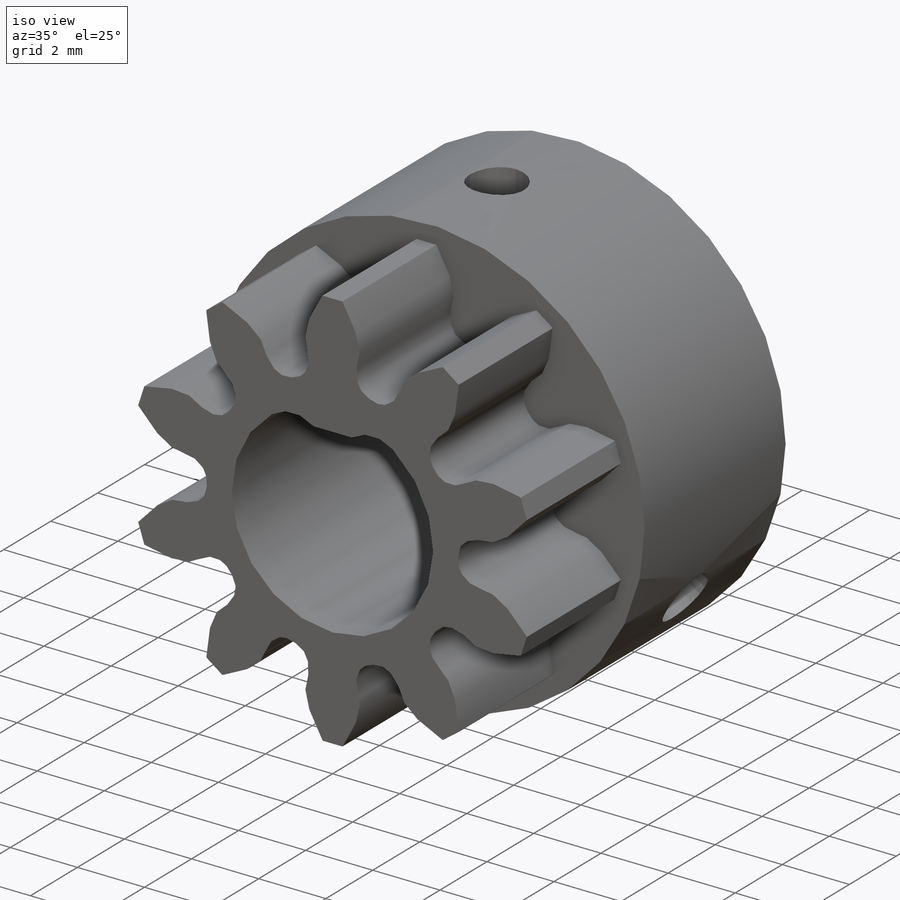
[diagram: iso view]
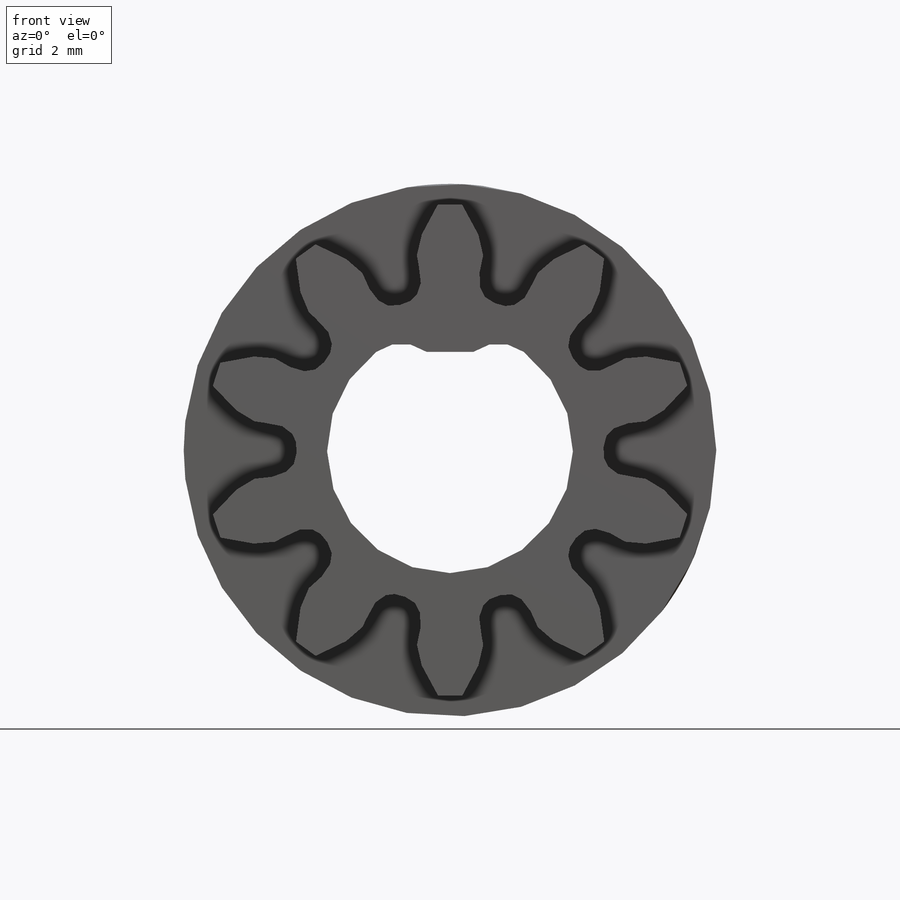
[diagram: front view]
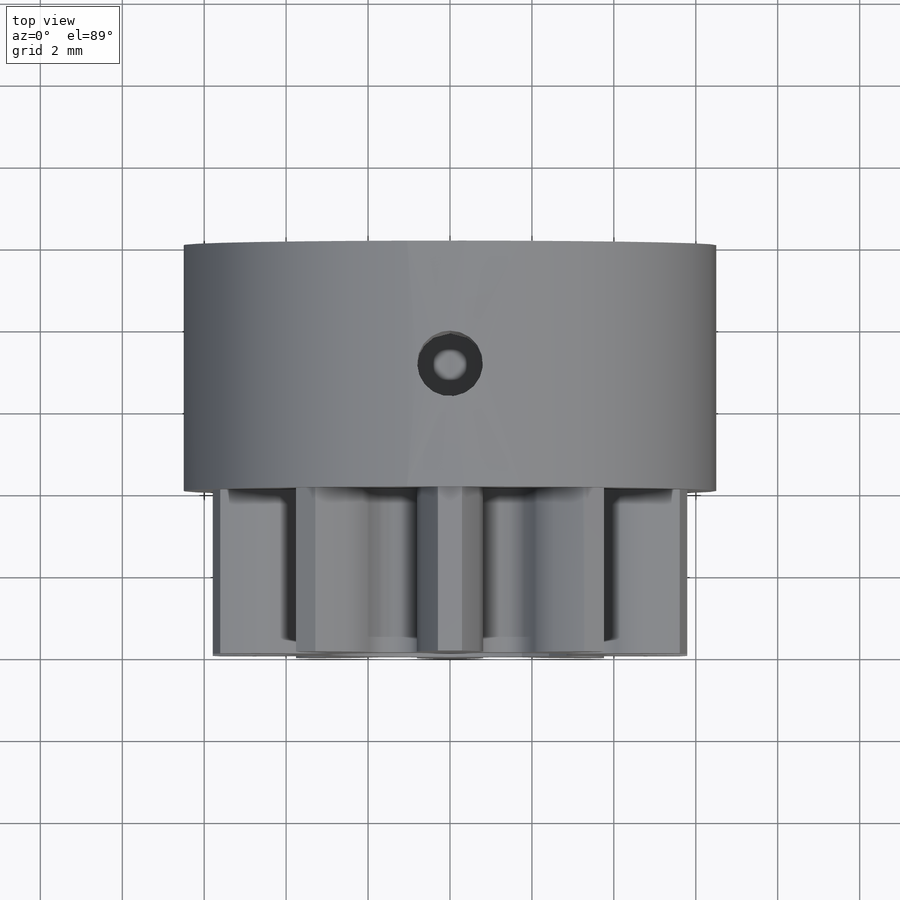
[diagram: top view]
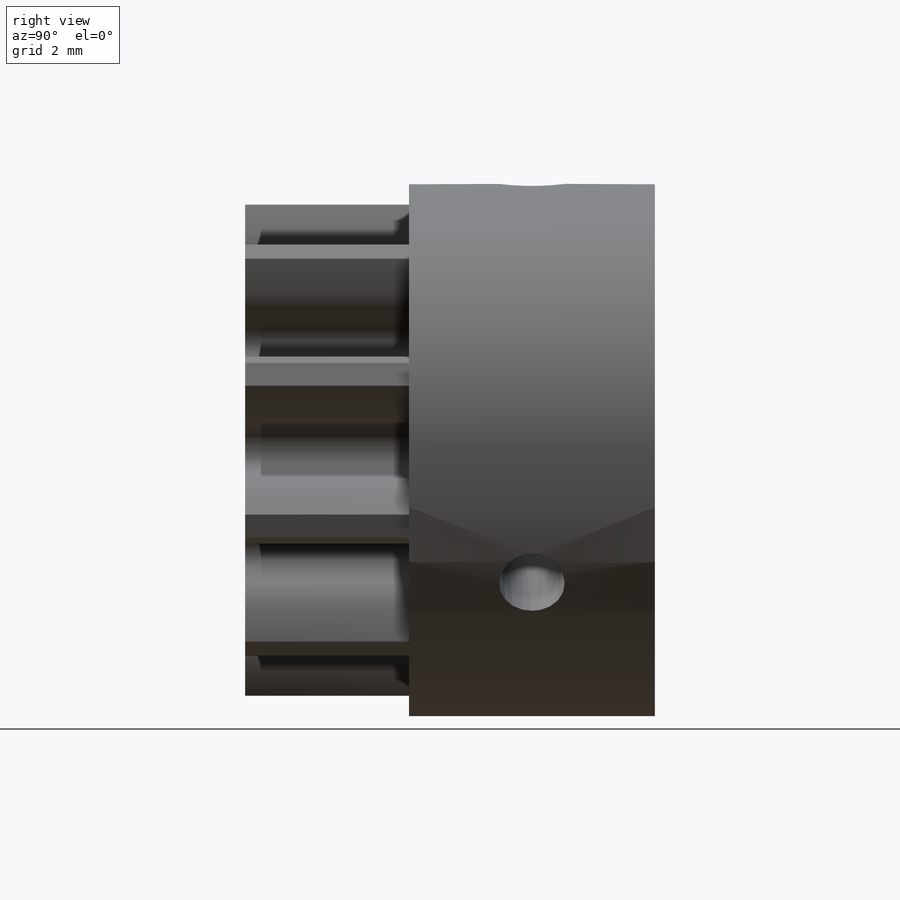
[diagram: right view]
SOLIDWORKS PART (.sldprt)
format: sldprt  version: not decoded by parser v0  size: 376,320 bytes
history: native  units: mm
features: sketch x8, pattern_circular x2, extrude x2, material x1, revolve x1, cut_extrude x1, cut_revolve x1, plane x1, hole x1 (+12 scaffold rows collapsed)
feature tree (30):
  scaffold x12  (default folders/planes/origin — collapsed)
  material  "Material <not specified>"
  sketch  "SketchRevolveSun_Driver01"  dims[Side1=2.0mm OutsideRadius=6.0mm Side2=2.0mm]
  revolve  "Sun_Driver01"  Angle=360deg
  sketch  "SketchToothSun_Driver01"
  cut_extrude  "ToothExtrudeCutSun_Driver01"  Depth=2.5mm
  pattern_circular  "PatternSun_Driver01"  Count=10 Angle=36deg
  sketch  "BoreRevolveSketch"  dims[BoreSide1=2.5mm TaperSide1=3.0mm BoreSide2=2.5mm TaperSide2=3.0mm]
  cut_revolve  "BoreRevolveCut"  Angle=360deg
  sketch  "AuxiliarySketchSun_Driver01"  dims[PitchDiameter=10.0mm BaseDiameter=~9.396926mm FormDiameter=~9.786858mm MajorDiameter=12.0mm MinorDiameter=7.5mm]
  sketch  "Sketch5"  dims[D1=13.0mm]
  extrude  "Boss-Extrude1"  Depth=6mm
  sketch  "Sketch6"  dims[D2=2.05mm D1=5.4mm]
  extrude  "Boss-Extrude2"  [1 undecoded]
  plane  "Plane1"
  hole  "Tap Drill for M2 Tap1"  Diameter=1.6mm Depth=6.479165mm
  sketch  "Sketch8"  dims[D1=3.0mm]
  sketch  "Sketch7"  dims[hole-wizard template sketch: 60 standard entries collapsed; hole parameters kept: c18.Thru Hole Depth=~6.479165mm]
  pattern_circular  "CirPattern1"  Count=3 Angle=360deg
decode coverage: 14 of 16 modeling features carry decoded parameters
note: ~ marks probable driven/reference dimensions
note: 1 parameter value undecoded
note: suppression state not decoded; provenance and decode notes live in map.json
